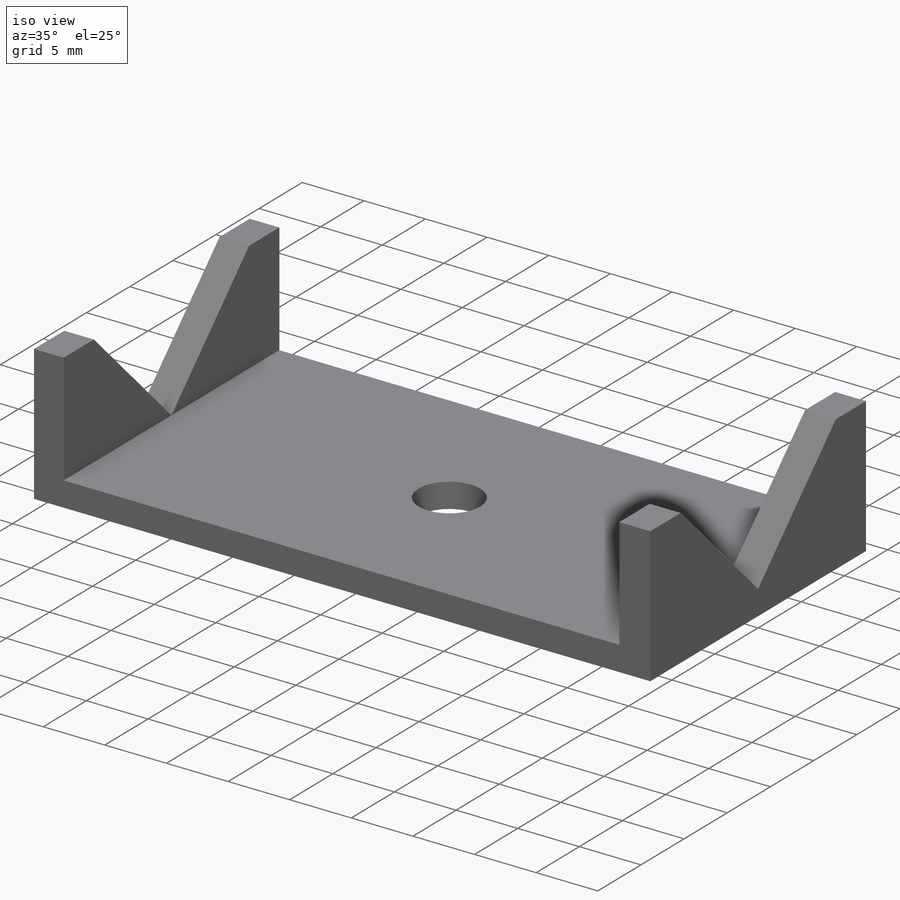
[diagram: iso view]
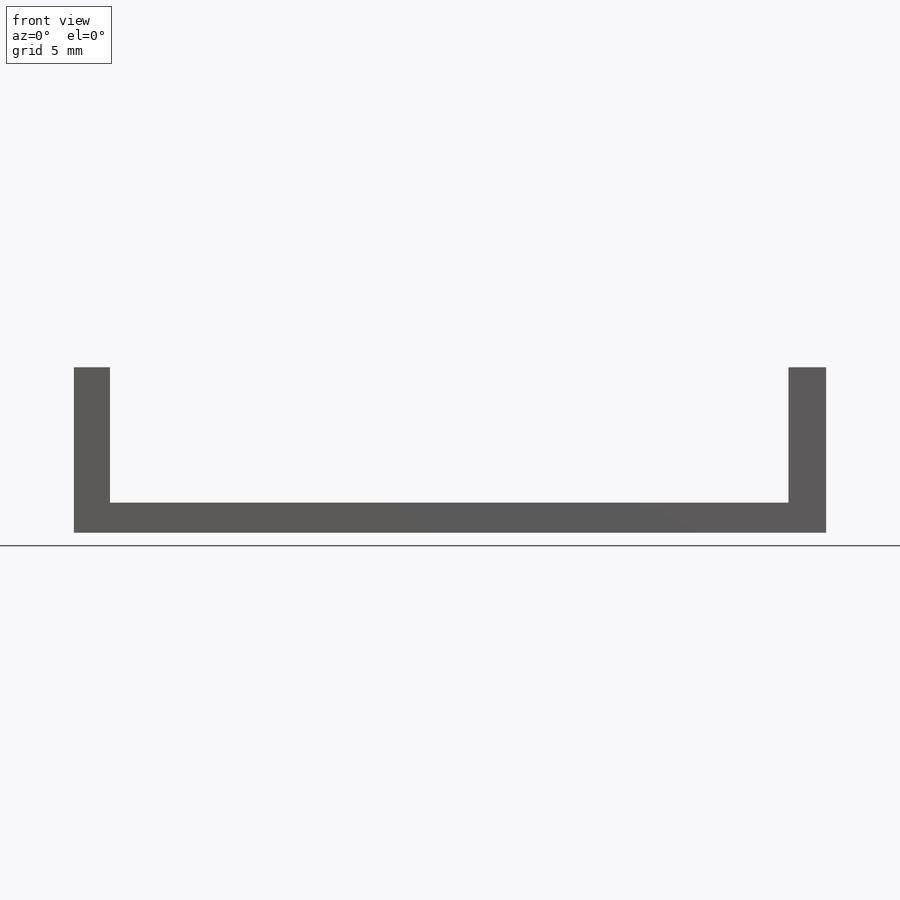
[diagram: front view]
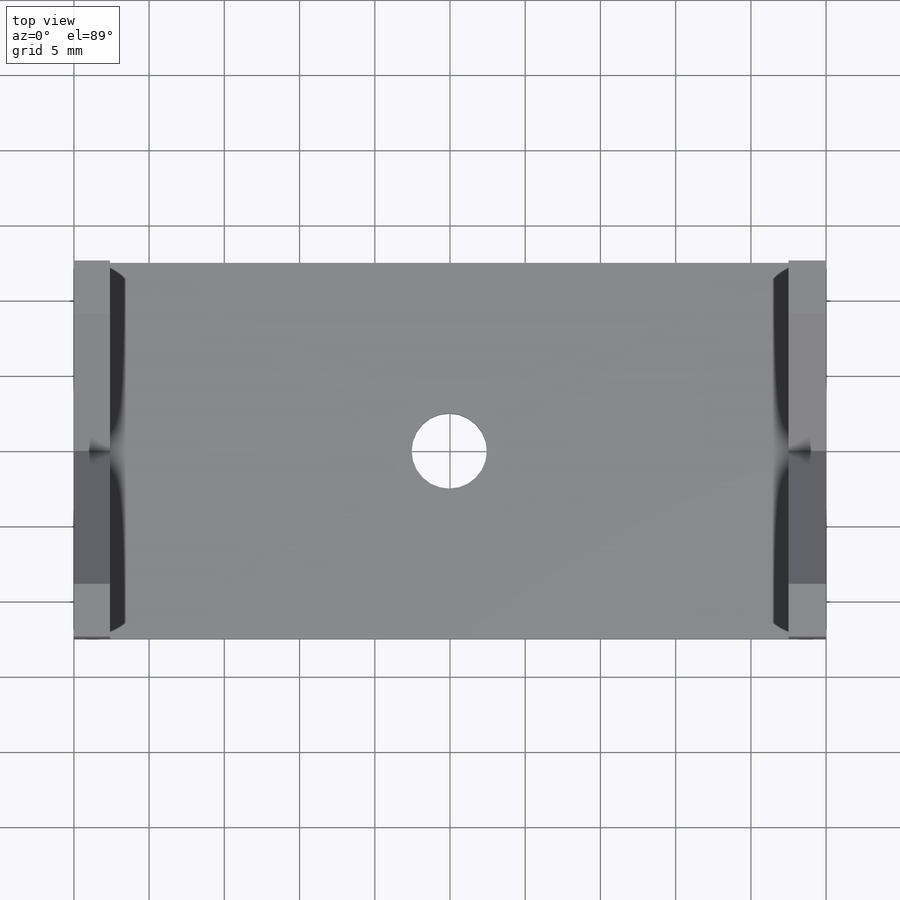
[diagram: top view]
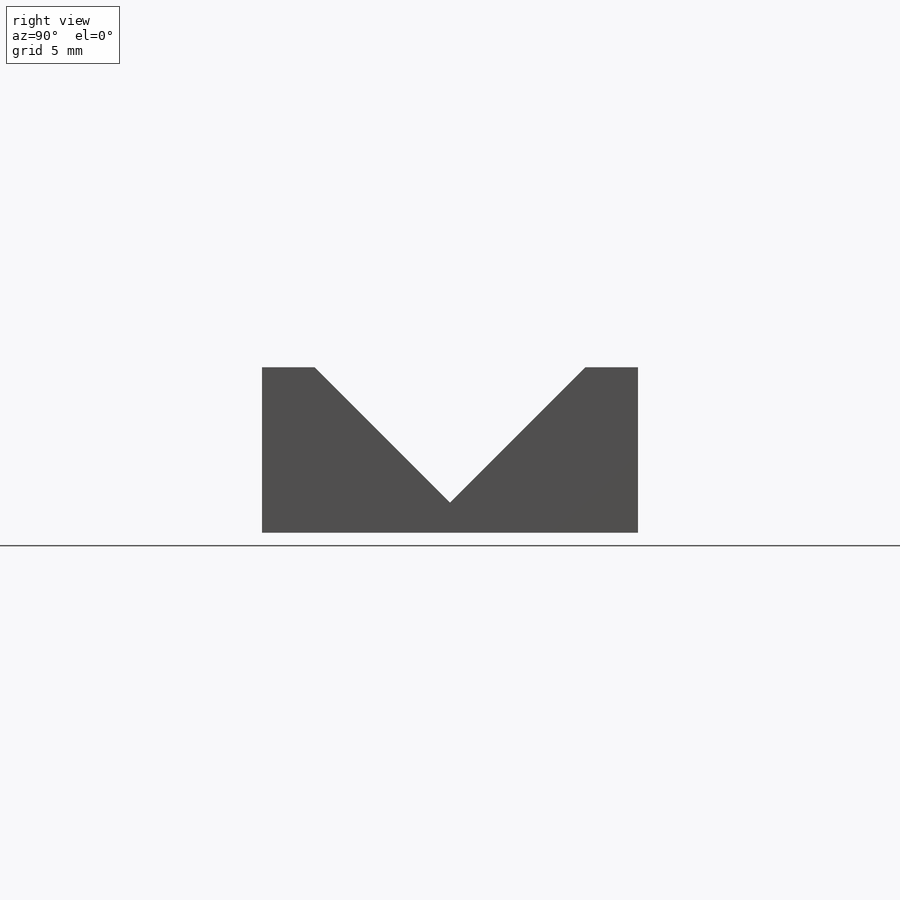
[diagram: right view]
SOLIDWORKS PART (.sldprt)
format: sldprt  version: not decoded by parser v0  size: 195,584 bytes
history: native  units: mm
features: sketch x6, extrude x3, cut_extrude x3, material x1 (+13 scaffold rows collapsed)
feature tree (26):
  scaffold x13  (default folders/planes/origin — collapsed)
  material  "Material <not specified>"
  sketch  "Sketch1"  dims[D1=50.0mm D2=25.0mm]
  extrude  "Boss-Extrude1"  Depth=2mm
  sketch  "Sketch2"  dims[D1=2.4mm]
  extrude  "Boss-Extrude2"  Depth=9mm
  sketch  "Sketch3"  dims[c1.D1=9.0mm c2.D1=45.0deg c2.D2=~12.727922mm c3.D2=45.0deg]
  cut_extrude  "Cut-Extrude1"  Depth=9mm
  sketch  "Sketch4"  dims[D1=2.5mm]
  extrude  "Boss-Extrude3"  Depth=9mm
  sketch  "Sketch5"  dims[c1.D1=~11.933937mm c2.D1=45.0deg c2.D2=~11.331776mm c3.D2=45.0deg]
  cut_extrude  "Cut-Extrude2"  Depth=9mm
  sketch  "Sketch6"  dims[D1=5.0mm D2=12.5mm]
  cut_extrude  "Cut-Extrude4"  [1 undecoded]
decode coverage: 11 of 12 modeling features carry decoded parameters
note: ~ marks probable driven/reference dimensions
note: 1 parameter value undecoded
note: suppression state not decoded; provenance and decode notes live in map.json
